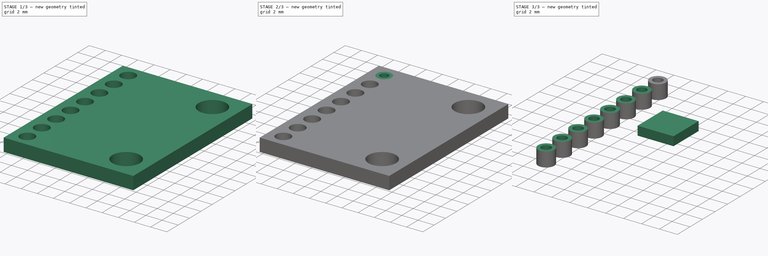
[diagram: build sequence overview — one tinted view per stage of 3, left to right]
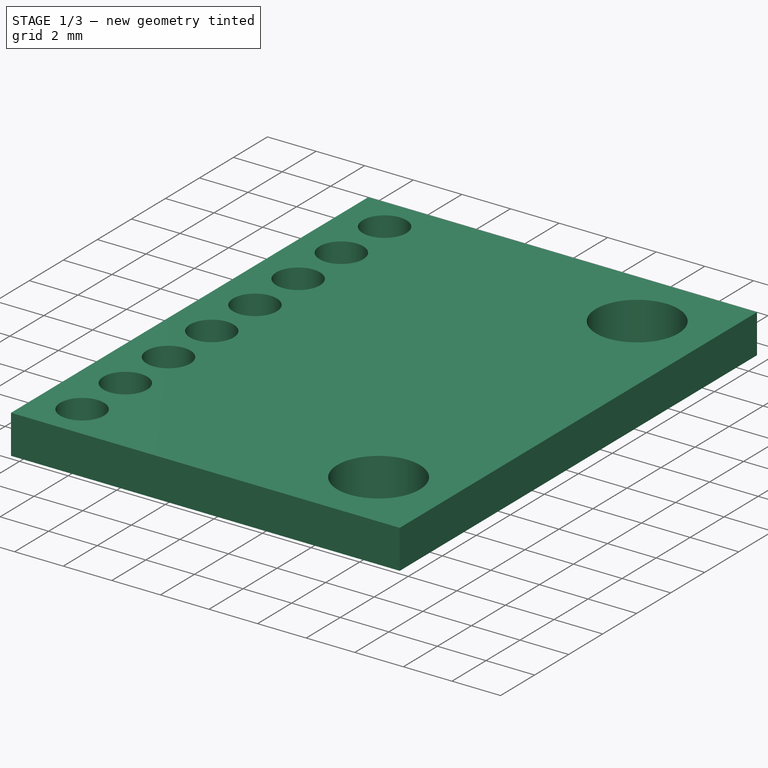
[diagram: stage 1 of 3 — iso view after this stage's code; geometry added in this stage tinted green]
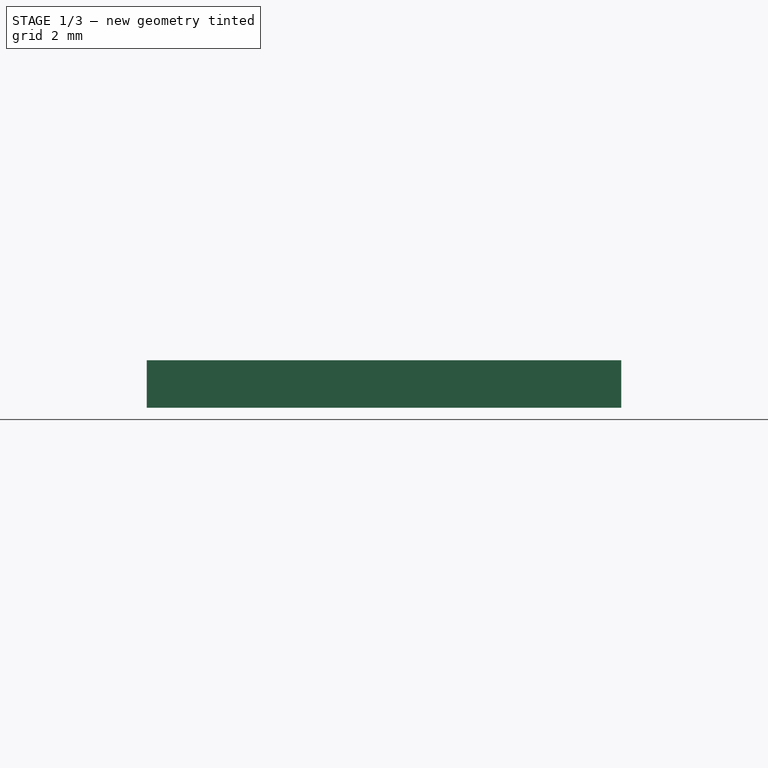
[diagram: stage 1 of 3 — front view after this stage's code; geometry added in this stage tinted green]
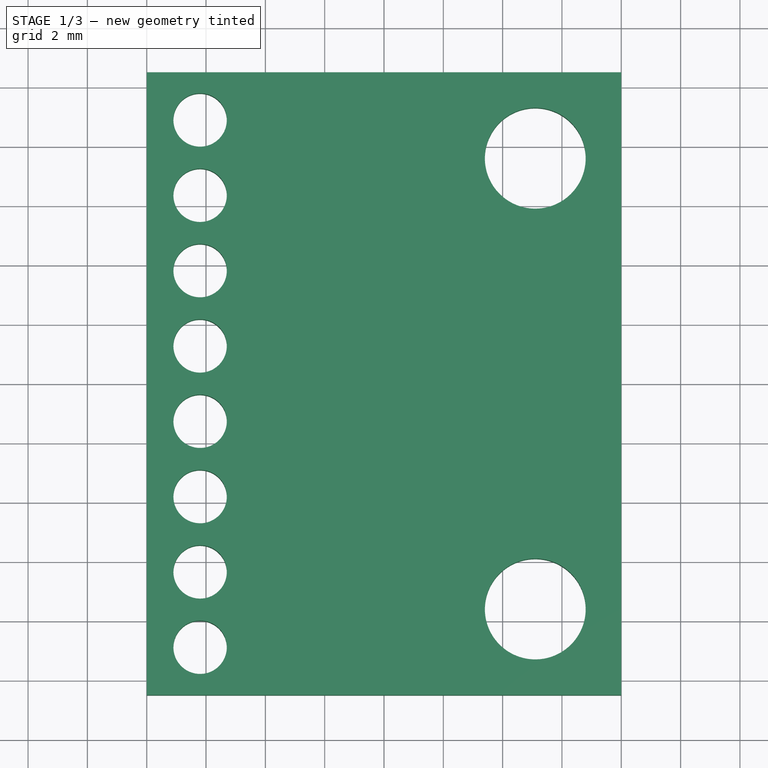
[diagram: stage 1 of 3 — top view after this stage's code; geometry added in this stage tinted green]
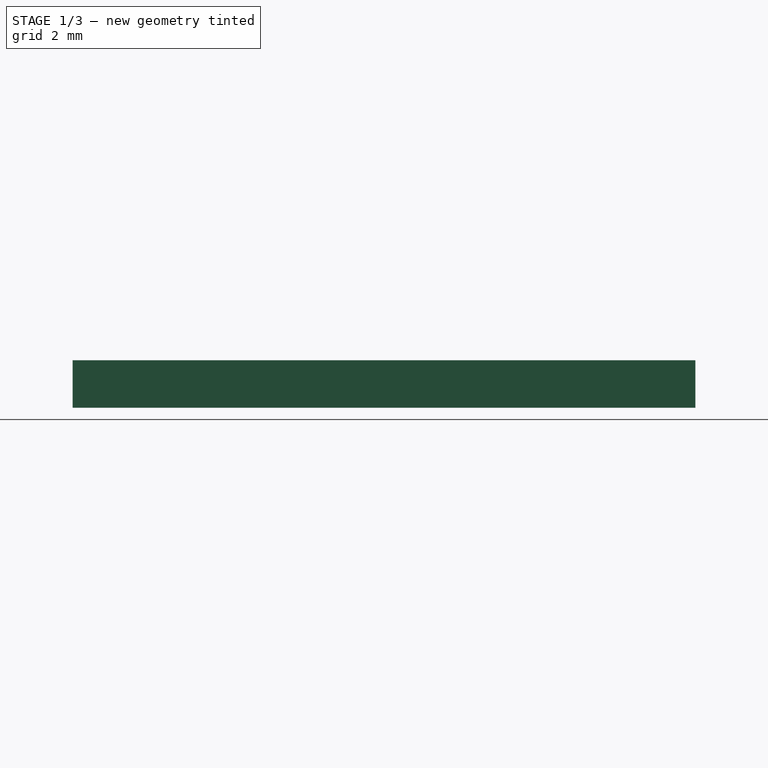
[diagram: stage 1 of 3 — right view after this stage's code; geometry added in this stage tinted green]
FCSTD DOCUMENT  (FreeCAD 0.20R27422 (Git))
Label: MPU-6050_Board
License: All rights reserved
LicenseURL: http://en.wikipedia.org/wiki/All_rights_reserved
objects: Sketcher::SketchObject×9, App::DocumentObjectGroup×3, PartDesign::Pad×2, PartDesign::Body×2, Part::FeaturePython×2, PartDesign::Pocket×1, PartDesign::ShapeBinder×1, PartDesign::Plane×1, App::Part×1, Part::Part2DObjectPython×1
note: 21 computed .brp shape members not serialized (recipe doc carries the construction recipe); baked Part::Feature solids carry a one-line shape summary decoded from their .brp

FEATURE [Sketcher::SketchObject] Sketch
  FullyConstrained = true
  MapMode = 5
  Support = -> [XY_Plane]
  sketch-geometry (4):
    g0: LineSegment StartX=-8 StartY=10.5 StartZ=0 EndX=8 EndY=10.5 EndZ=0
    g1: LineSegment StartX=8 StartY=10.5 StartZ=0 EndX=8 EndY=-10.5 EndZ=0
    g2: LineSegment StartX=8 StartY=-10.5 StartZ=0 EndX=-8 EndY=-10.5 EndZ=0
    g3: LineSegment StartX=-8 StartY=-10.5 StartZ=0 EndX=-8 EndY=10.5 EndZ=0
  constraints (11):
    c: Coincident(g0,g1)
    c: Coincident(g1,g2)
    c: Coincident(g2,g3)
    c: Coincident(g3,g0)
    c: Horizontal(g0)
    c: Horizontal(g2)
    c: Vertical(g1)
    c: Vertical(g3)
    c: DistanceY(g3,g3) = 21
    c: Symmetric(g0,g1,g-1)
    c: DistanceX(g0,g0) = 16
FEATURE [PartDesign::Pad] Pad
  Direction = (0,0,1)
  Length = 1.6
  Length2 = 10
  Profile = -> Sketch
  ReferenceAxis = -> Sketch [N_Axis]
  Type = 0
FEATURE [Sketcher::SketchObject] Sketch001
  ExternalGeometry = -> [Pad]
  FullyConstrained = true
  MapMode = 5
  Placement = pos=(0,0,1.6) rot=(0,0,1;0rad)
  Support = -> [Pad]
  sketch-geometry (19):
    g0: Circle CenterX=5.1 CenterY=7.6 CenterZ=0 NormalX=0 NormalY=0 NormalZ=1 AngleXU=0 Radius=1.7
    g1: Circle CenterX=5.1 CenterY=-7.6 CenterZ=0 NormalX=0 NormalY=0 NormalZ=1 AngleXU=0 Radius=1.7
    g2: LineSegment StartX=5.1 StartY=7.6 StartZ=0 EndX=5.1 EndY=10.5 EndZ=0
    g3: LineSegment StartX=5.1 StartY=7.6 StartZ=0 EndX=8 EndY=7.6 EndZ=0
    g4: GeomPoint X=6.8 Y=7.6 Z=0
    g5: LineSegment StartX=5.1 StartY=7.6 StartZ=0 EndX=-6.2 EndY=7.6 EndZ=0
    g6: LineSegment StartX=-6.2 StartY=10.5 StartZ=0 EndX=-6.2 EndY=-10.5 EndZ=0
    g7: GeomPoint X=-6.2 Y=-1.27 Z=0
    g8: GeomPoint X=-6.2 Y=-3.81 Z=0
    g9: GeomPoint X=-6.2 Y=-6.35 Z=0
    g10: GeomPoint X=-6.2 Y=-8.89 Z=0
    g11: Circle CenterX=-6.2 CenterY=-1.27 CenterZ=0 NormalX=0 NormalY=0 NormalZ=1 AngleXU=0 Radius=0.9
    g12: Circle CenterX=-6.2 CenterY=-3.81 CenterZ=0 NormalX=0 NormalY=0 NormalZ=1 AngleXU=0 Radius=0.9
    g13: Circle CenterX=-6.2 CenterY=-6.35 CenterZ=0 NormalX=0 NormalY=0 NormalZ=1 AngleXU=0 Radius=0.9
    g14: Circle CenterX=-6.2 CenterY=-8.89 CenterZ=0 NormalX=0 NormalY=0 NormalZ=1 AngleXU=0 Radius=0.9
    g15: Circle CenterX=-6.2 CenterY=1.27 CenterZ=0 NormalX=0 NormalY=0 NormalZ=1 AngleXU=0 Radius=0.9
    g16: Circle CenterX=-6.2 CenterY=3.81 CenterZ=0 NormalX=0 NormalY=0 NormalZ=1 AngleXU=0 Radius=0.9
    g17: Circle CenterX=-6.2 CenterY=6.35 CenterZ=0 NormalX=0 NormalY=0 NormalZ=1 AngleXU=0 Radius=0.9
    g18: Circle CenterX=-6.2 CenterY=8.89 CenterZ=0 NormalX=0 NormalY=0 NormalZ=1 AngleXU=0 Radius=0.9
  constraints (44):
    c: Equal(g1,g0)
    c: Diameter(g0) = 3.4
    c: Symmetric(g0,g1,g-1)
    c: Coincident(g2,g0)
    c: PointOnObject(g2,g-3)
    c: Vertical(g2)
    c: Coincident(g3,g0)
    c: PointOnObject(g3,g-5)
    c: Horizontal(g3)
    c: Equal(g3,g2)
    c: PointOnObject(g4,g3)
    c: PointOnObject(g4,g0)
    c: Distance(g4,g3) = 1.2
    c: Coincident(g5,g0)
    c: Horizontal(g5)
    c: DistanceX(g5,g5) = 11.3
    c: PointOnObject(g6,g-3)
    c: PointOnObject(g6,g-4)
    c: Vertical(g6)
    c: PointOnObject(g5,g6)
    c: PointOnObject(g7,g6)
    c: PointOnObject(g8,g6)
    c: PointOnObject(g9,g6)
    c: PointOnObject(g10,g6)
    c: DistanceY(g8,g7) = 2.54
    c: DistanceY(g9,g8) = 2.54
    c: DistanceY(g10,g9) = 2.54
    c: DistanceY(g7,g-1) = 1.27
    c: Coincident(g11,g7)
    c: Coincident(g12,g8)
    c: Coincident(g13,g9)
    c: Coincident(g14,g10)
    c: Symmetric(g14,g18,g-1)
    c: Symmetric(g13,g17,g-1)
    c: Symmetric(g12,g16,g-1)
    c: Symmetric(g11,g15,g-1)
    c: Diameter(g18) = 1.8
    c: Equal(g17,g18)
    c: Equal(g18,g16)
    c: Equal(g16,g15)
    c: Equal(g15,g11)
    c: Equal(g11,g12)
    c: Equal(g12,g13)
    c: Equal(g13,g14)
FEATURE [PartDesign::Pocket] Pocket
  BaseFeature = -> Pad
  Direction = (0,0,-1)
  Length = 5
  Length2 = 5
  Profile = -> Sketch001
  ReferenceAxis = -> Sketch001 [N_Axis]
  Type = 0
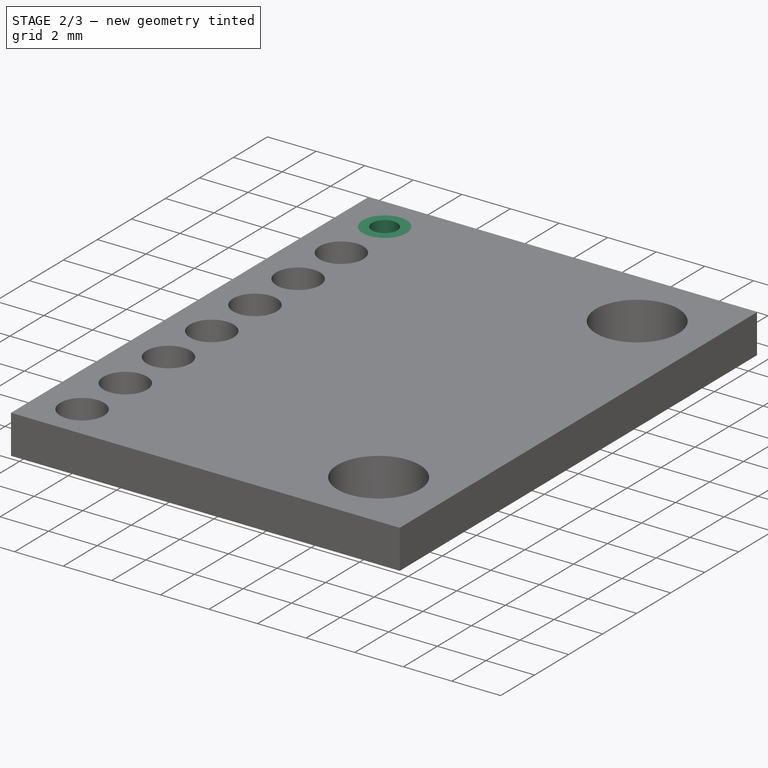
[diagram: stage 2 of 3 — iso view after this stage's code; geometry added in this stage tinted green]
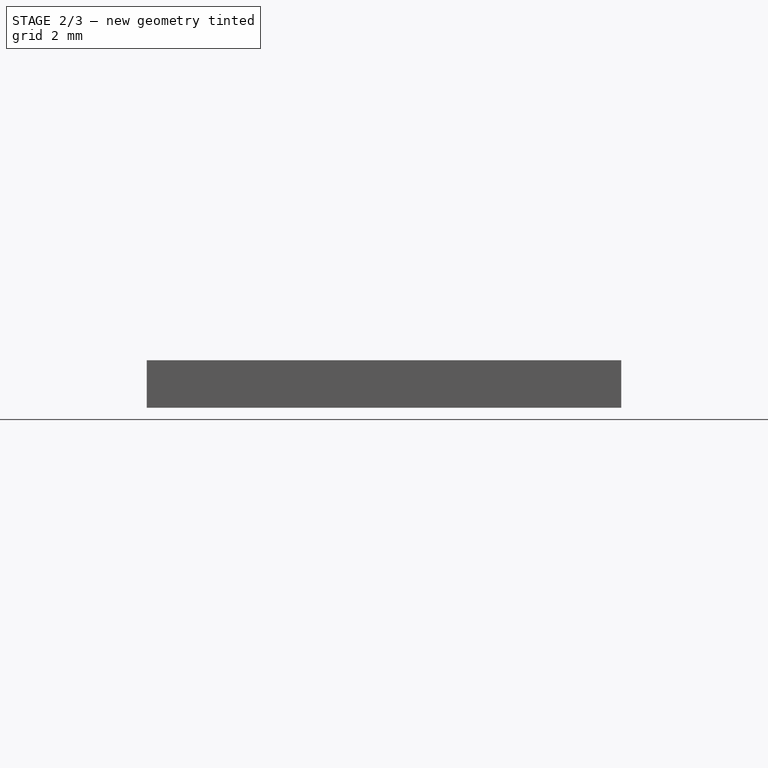
[diagram: stage 2 of 3 — front view after this stage's code; geometry added in this stage tinted green]
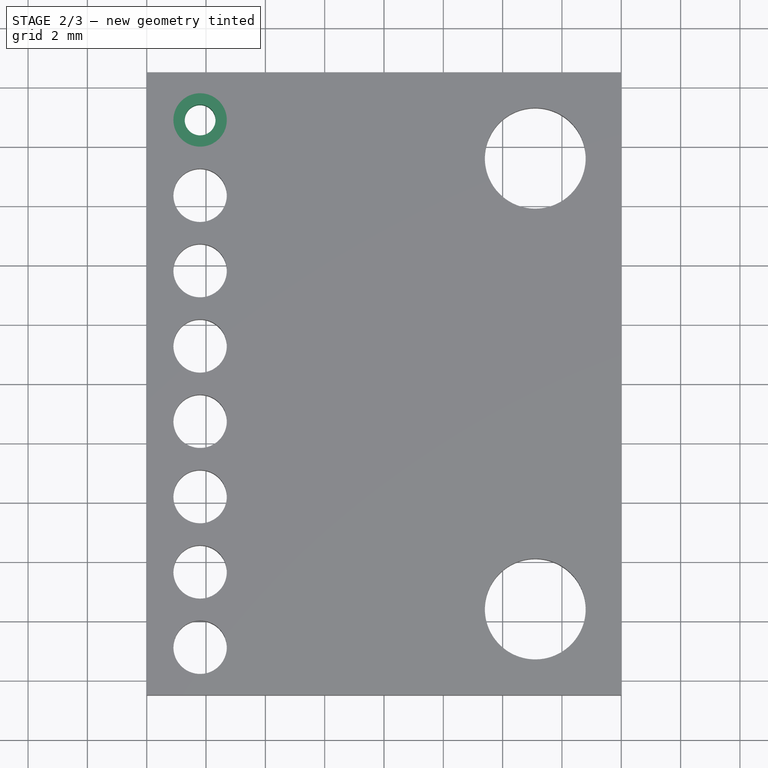
[diagram: stage 2 of 3 — top view after this stage's code; geometry added in this stage tinted green]
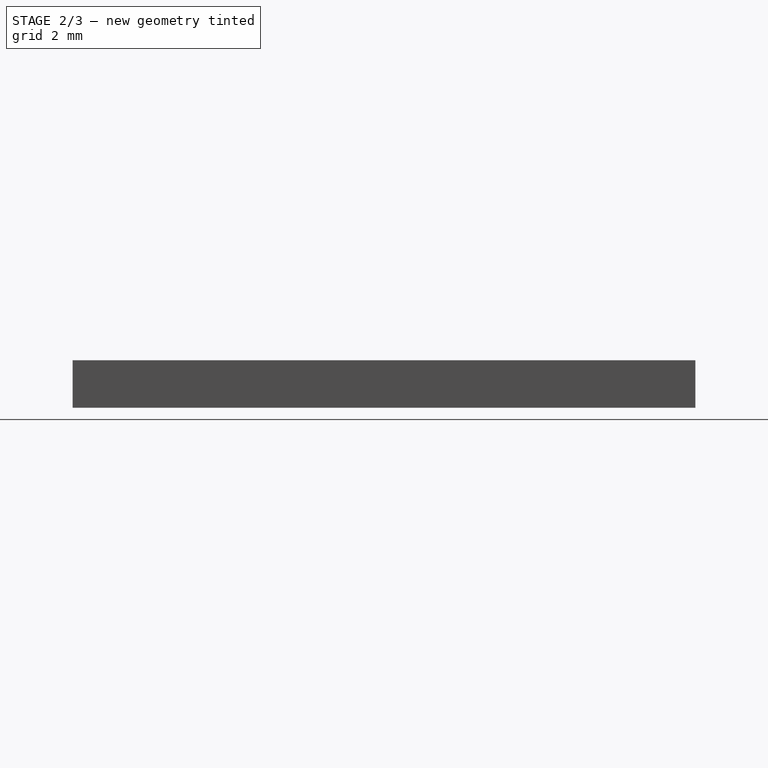
[diagram: stage 2 of 3 — right view after this stage's code; geometry added in this stage tinted green]
FEATURE [PartDesign::Body] Body001  label="chip"
  Group = -> [ShapeBinder,DatumPlane,Sketch002,Pad001]
  Origin = -> Origin001
  Tip = -> Pad001
FEATURE [Part::FeaturePython] Tube  # WARN: FeaturePython — macro-defined, semantics opaque (R4)
  AttacherType = Attacher::AttachEngine3D
  Height = 1.6
  InnerRadius = 0.52
  OuterRadius = 0.9
  Placement = pos=(-6.2,8.89,0) rot=(0,0,1;0rad)
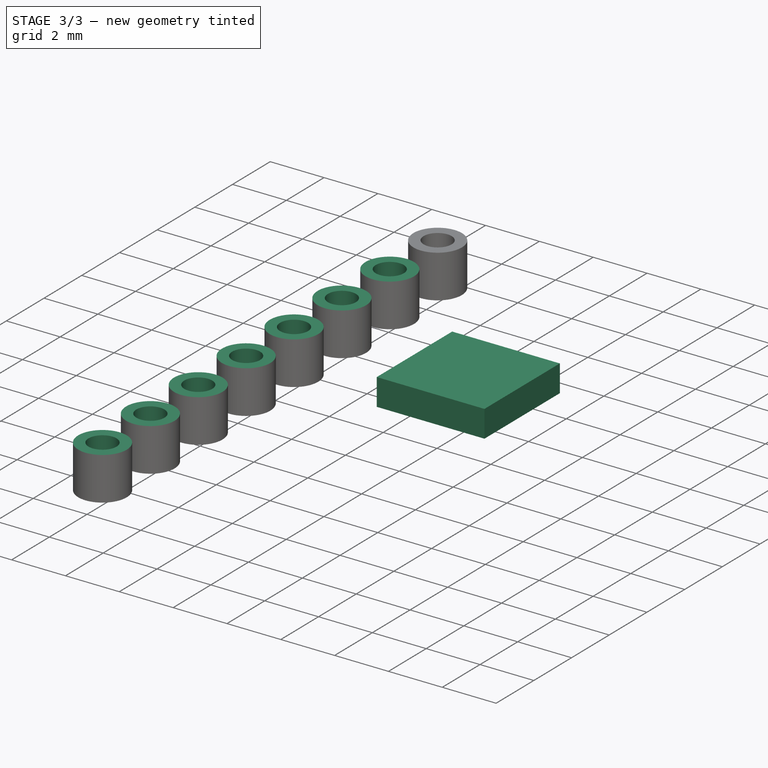
[diagram: stage 3 of 3 — iso view after this stage's code; geometry added in this stage tinted green]
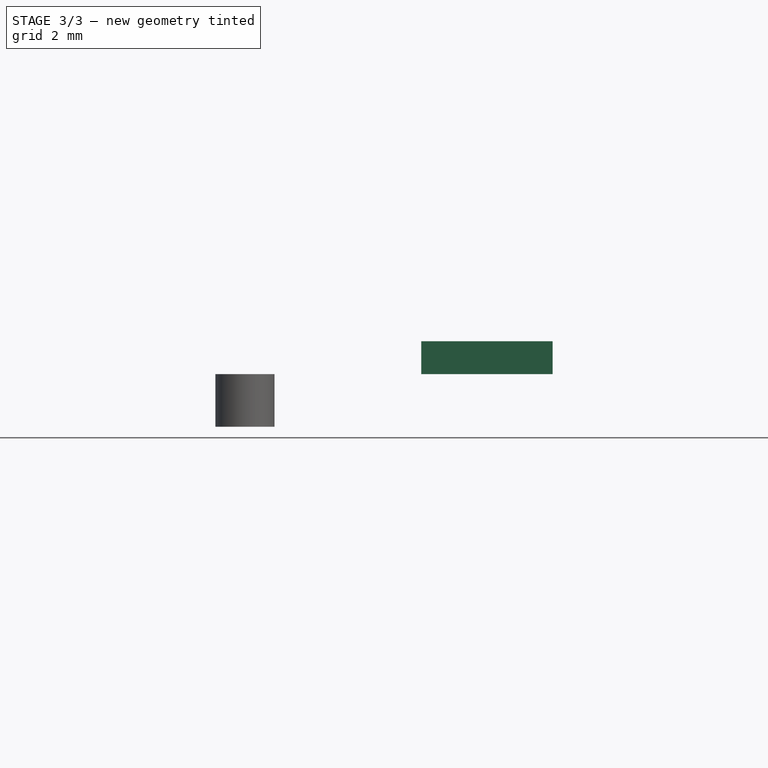
[diagram: stage 3 of 3 — front view after this stage's code; geometry added in this stage tinted green]
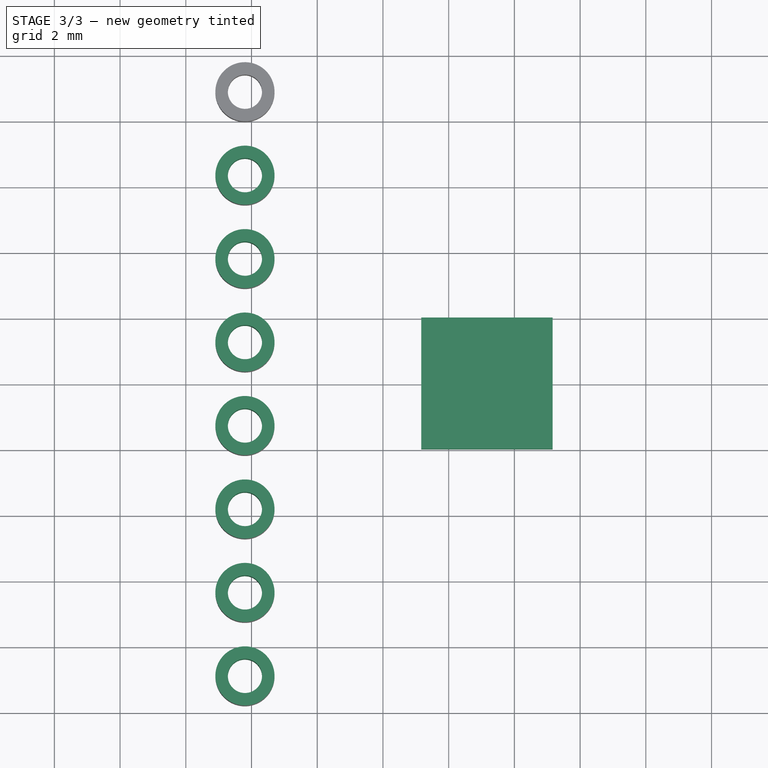
[diagram: stage 3 of 3 — top view after this stage's code; geometry added in this stage tinted green]
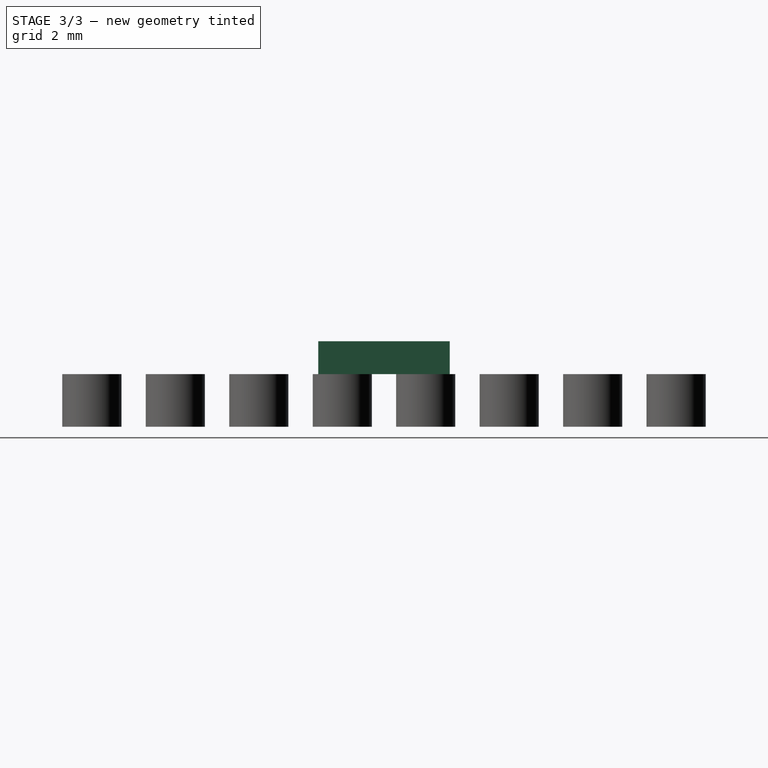
[diagram: stage 3 of 3 — right view after this stage's code; geometry added in this stage tinted green]
FEATURE [PartDesign::ShapeBinder] ShapeBinder
  Support = -> [Pocket]
  TraceSupport = false
FEATURE [PartDesign::Plane] DatumPlane
  Length = 60
  MapMode = 13
  Placement = pos=(2.66667,3.5,1.6) rot=(0,1,0;3.14159rad)
  ResizeMode = 0
  Support = -> [ShapeBinder]
  Width = 60
FEATURE [Sketcher::SketchObject] Sketch002
  ExternalGeometry = -> [ShapeBinder]
  FullyConstrained = false
  MapMode = 5
  Placement = pos=(2.66667,3.5,1.6) rot=(0,1,0;3.14159rad)
  Support = -> [DatumPlane]
  sketch-geometry (7):
    g0: LineSegment StartX=3.50296 StartY=-5.5 StartZ=0 EndX=-0.497035 EndY=-5.5 EndZ=0
    g1: LineSegment StartX=-0.497035 StartY=-5.5 StartZ=0 EndX=-0.497035 EndY=-1.5 EndZ=0
    g2: LineSegment StartX=-0.497035 StartY=-1.5 StartZ=0 EndX=3.50296 EndY=-1.5 EndZ=0
    g3: LineSegment StartX=3.50296 StartY=-1.5 StartZ=0 EndX=3.50296 EndY=-5.5 EndZ=0
    g4: LineSegment StartX=8.86667 StartY=-4.77 StartZ=0 EndX=8.86667 EndY=-3.5 EndZ=0
    g5: LineSegment StartX=8.86667 StartY=-3.5 StartZ=0 EndX=8.86667 EndY=-2.23 EndZ=0
    g6: LineSegment StartX=8.86667 StartY=-3.5 StartZ=0 EndX=-3.75702 EndY=-3.5 EndZ=0
  constraints (17):
    c: Coincident(g0,g1)
    c: Coincident(g1,g2)
    c: Coincident(g2,g3)
    c: Coincident(g3,g0)
    c: Horizontal(g0)
    c: Horizontal(g2)
    c: Vertical(g1)
    c: Vertical(g3)
    c: Coincident(g4,g-4)
    c: Coincident(g5,g-3)
    c: Coincident(g4,g5)
    c: Coincident(g6,g4)
    c: Equal(g4,g5)
    c: Parallel(g5,g4)
    c: Symmetric(g0,g2,g6)
    c: Equal(g3,g0)
    c: DistanceX(g0,g0) = 4
FEATURE [PartDesign::Pad] Pad001
  Direction = (0,0,-1)
  Length = 1
  Length2 = 10
  Placement = pos=(2.66667,3.5,1.6) rot=(0,1,0;3.14159rad)
  Profile = -> Sketch002
  ReferenceAxis = -> Sketch002 [N_Axis]
  Reversed = true
  Type = 0
FEATURE [Part::FeaturePython] Array  # Draft array (typed FeaturePython)
  AlwaysSyncPlacement = false
  Angle = 360
  ArrayType = 0
  Axis = (0,0,1)
  Base = -> Tube
  Center = (0,0,0)
  Count = 8
  ExpandArray = false
  Fuse = false
  IntervalAxis = (0,0,0)
  IntervalX = (100,0,0)
  IntervalY = (0,-2.54,0)
  IntervalZ = (0,0,100)
  NumberCircles = 3
  NumberPolar = 5
  NumberX = 1
  NumberY = 8
  NumberZ = 1
  PlacementList = 8 placements: arithmetic series from (-6.2,8.89,0) step (0,-2.54,0) to (-6.2,-8.89,0)
  RadialDistance = 50
  ScaleList = (8) [(1,1,1),(1,1,1),(1,1,1),(1,1,1),(1,1,1),(1,1,1),(1,1,1),(1,1,1)]
  Symmetry = 1
  TangentialDistance = 25
FEATURE [App::Part] Part
  Group = -> [Tube,Array]
  Origin = -> Origin002
FEATURE [PartDesign::Body] Body  label="PCB"
  Group = -> [Sketch,Pad,Sketch001,Pocket]
  Origin = -> Origin
  Tip = -> Pocket
FEATURE [App::DocumentObjectGroup] Group  label="3d_model"
  Group = -> [Body,Body001,Part]
FEATURE [Part::Part2DObjectPython] Shape2DView  # Draft 2D object (typed FeaturePython)
  AutoUpdate = true
  Base = -> Group
  Clip = false
  FuseArch = false
  HiddenLines = false
  InPlace = true
  OnlySolids = false
  Projection = (0,0,1)
  ProjectionMode = 0
  SegmentLength = 0.05
  Tessellation = false
  VisibleOnly = false
FEATURE [Sketcher::SketchObject] Sketch005  label="F_Silks_0.16"
  FullyConstrained = false
  sketch-geometry (4):
    g0: LineSegment StartX=-8 StartY=10.5 StartZ=0 EndX=8 EndY=10.5 EndZ=0
    g1: LineSegment StartX=-8 StartY=-10.5 StartZ=0 EndX=-8 EndY=10.5 EndZ=0
    g2: LineSegment StartX=8 StartY=10.5 StartZ=0 EndX=8 EndY=-10.5 EndZ=0
    g3: LineSegment StartX=8 StartY=-10.5 StartZ=0 EndX=-8 EndY=-10.5 EndZ=0
FEATURE [Sketcher::SketchObject] Sketch004  label="Pads_TH_SMD"
  FullyConstrained = false
  sketch-geometry (16):
    g0: Circle CenterX=-6.2 CenterY=8.89 CenterZ=0 NormalX=0 NormalY=0 NormalZ=1 AngleXU=0 Radius=0.9
    g1: Circle CenterX=-6.2 CenterY=8.89 CenterZ=0 NormalX=0 NormalY=0 NormalZ=1 AngleXU=0 Radius=0.52
    g2: Circle CenterX=-6.2 CenterY=6.35 CenterZ=0 NormalX=0 NormalY=0 NormalZ=1 AngleXU=0 Radius=0.9
    g3: Circle CenterX=-6.2 CenterY=6.35 CenterZ=0 NormalX=0 NormalY=0 NormalZ=1 AngleXU=0 Radius=0.52
    g4: Circle CenterX=-6.2 CenterY=3.81 CenterZ=0 NormalX=0 NormalY=0 NormalZ=1 AngleXU=0 Radius=0.9
    g5: Circle CenterX=-6.2 CenterY=3.81 CenterZ=0 NormalX=0 NormalY=0 NormalZ=1 AngleXU=0 Radius=0.52
    g6: Circle CenterX=-6.2 CenterY=1.27 CenterZ=0 NormalX=0 NormalY=0 NormalZ=1 AngleXU=0 Radius=0.9
    g7: Circle CenterX=-6.2 CenterY=1.27 CenterZ=0 NormalX=0 NormalY=0 NormalZ=1 AngleXU=0 Radius=0.52
    g8: Circle CenterX=-6.2 CenterY=-1.27 CenterZ=0 NormalX=0 NormalY=0 NormalZ=1 AngleXU=0 Radius=0.9
    g9: Circle CenterX=-6.2 CenterY=-1.27 CenterZ=0 NormalX=0 NormalY=0 NormalZ=1 AngleXU=0 Radius=0.52
    g10: Circle CenterX=-6.2 CenterY=-3.81 CenterZ=0 NormalX=0 NormalY=0 NormalZ=1 AngleXU=0 Radius=0.9
    g11: Circle CenterX=-6.2 CenterY=-3.81 CenterZ=0 NormalX=0 NormalY=0 NormalZ=1 AngleXU=0 Radius=0.52
    g12: Circle CenterX=-6.2 CenterY=-6.35 CenterZ=0 NormalX=0 NormalY=0 NormalZ=1 AngleXU=0 Radius=0.9
    g13: Circle CenterX=-6.2 CenterY=-6.35 CenterZ=0 NormalX=0 NormalY=0 NormalZ=1 AngleXU=0 Radius=0.52
    g14: Circle CenterX=-6.2 CenterY=-8.89 CenterZ=0 NormalX=0 NormalY=0 NormalZ=1 AngleXU=0 Radius=0.9
    g15: Circle CenterX=-6.2 CenterY=-8.89 CenterZ=0 NormalX=0 NormalY=0 NormalZ=1 AngleXU=0 Radius=0.52
FEATURE [Sketcher::SketchObject] Sketch007  label="Sketch_converted003"
  FullyConstrained = false
  sketch-geometry (32):
    g0: LineSegment StartX=-8 StartY=10.5 StartZ=0 EndX=8 EndY=10.5 EndZ=0
    g1: LineSegment StartX=-8 StartY=-10.5 StartZ=0 EndX=-8 EndY=10.5 EndZ=0
    g2: LineSegment StartX=8 StartY=10.5 StartZ=0 EndX=8 EndY=-10.5 EndZ=0
    g3: LineSegment StartX=8 StartY=-10.5 StartZ=0 EndX=-8 EndY=-10.5 EndZ=0
    g4: Circle CenterX=5.1 CenterY=-7.6 CenterZ=0 NormalX=0 NormalY=0 NormalZ=1 AngleXU=0 Radius=1.7
    g5: Circle CenterX=-6.2 CenterY=-8.89 CenterZ=0 NormalX=0 NormalY=0 NormalZ=1 AngleXU=0 Radius=0.9
    g6: Circle CenterX=-6.2 CenterY=-6.35 CenterZ=0 NormalX=0 NormalY=0 NormalZ=1 AngleXU=0 Radius=0.9
    g7: Circle CenterX=-6.2 CenterY=-3.81 CenterZ=0 NormalX=0 NormalY=0 NormalZ=1 AngleXU=0 Radius=0.9
    g8: Circle CenterX=-6.2 CenterY=-1.27 CenterZ=0 NormalX=0 NormalY=0 NormalZ=1 AngleXU=0 Radius=0.9
    g9: Circle CenterX=5.1 CenterY=7.6 CenterZ=0 NormalX=0 NormalY=0 NormalZ=1 AngleXU=0 Radius=1.7
    g10: Circle CenterX=-6.2 CenterY=1.27 CenterZ=0 NormalX=0 NormalY=0 NormalZ=1 AngleXU=0 Radius=0.9
    g11: Circle CenterX=-6.2 CenterY=3.81 CenterZ=0 NormalX=0 NormalY=0 NormalZ=1 AngleXU=0 Radius=0.9
    g12: Circle CenterX=-6.2 CenterY=6.35 CenterZ=0 NormalX=0 NormalY=0 NormalZ=1 AngleXU=0 Radius=0.9
    g13: Circle CenterX=-6.2 CenterY=8.89 CenterZ=0 NormalX=0 NormalY=0 NormalZ=1 AngleXU=0 Radius=0.9
    g14: Circle CenterX=-6.2 CenterY=6.35 CenterZ=0 NormalX=0 NormalY=0 NormalZ=1 AngleXU=0 Radius=0.52
    g15: Circle CenterX=-6.2 CenterY=8.89 CenterZ=0 NormalX=0 NormalY=0 NormalZ=1 AngleXU=0 Radius=0.52
    g16: Circle CenterX=-6.2 CenterY=8.89 CenterZ=0 NormalX=0 NormalY=0 NormalZ=1 AngleXU=0 Radius=0.9
    g17: Circle CenterX=-6.2 CenterY=8.89 CenterZ=0 NormalX=0 NormalY=0 NormalZ=1 AngleXU=0 Radius=0.52
    g18: Circle CenterX=-6.2 CenterY=6.35 CenterZ=0 NormalX=0 NormalY=0 NormalZ=1 AngleXU=0 Radius=0.9
    g19: Circle CenterX=-6.2 CenterY=6.35 CenterZ=0 NormalX=0 NormalY=0 NormalZ=1 AngleXU=0 Radius=0.52
    g20: Circle CenterX=-6.2 CenterY=3.81 CenterZ=0 NormalX=0 NormalY=0 NormalZ=1 AngleXU=0 Radius=0.9
    g21: Circle CenterX=-6.2 CenterY=3.81 CenterZ=0 NormalX=0 NormalY=0 NormalZ=1 AngleXU=0 Radius=0.52
    g22: Circle CenterX=-6.2 CenterY=1.27 CenterZ=0 NormalX=0 NormalY=0 NormalZ=1 AngleXU=0 Radius=0.9
    g23: Circle CenterX=-6.2 CenterY=1.27 CenterZ=0 NormalX=0 NormalY=0 NormalZ=1 AngleXU=0 Radius=0.52
    g24: Circle CenterX=-6.2 CenterY=-1.27 CenterZ=0 NormalX=0 NormalY=0 NormalZ=1 AngleXU=0 Radius=0.9
    g25: Circle CenterX=-6.2 CenterY=-1.27 CenterZ=0 NormalX=0 NormalY=0 NormalZ=1 AngleXU=0 Radius=0.52
    g26: Circle CenterX=-6.2 CenterY=-3.81 CenterZ=0 NormalX=0 NormalY=0 NormalZ=1 AngleXU=0 Radius=0.9
    g27: Circle CenterX=-6.2 CenterY=-3.81 CenterZ=0 NormalX=0 NormalY=0 NormalZ=1 AngleXU=0 Radius=0.52
    g28: Circle CenterX=-6.2 CenterY=-6.35 CenterZ=0 NormalX=0 NormalY=0 NormalZ=1 AngleXU=0 Radius=0.9
    g29: Circle CenterX=-6.2 CenterY=-6.35 CenterZ=0 NormalX=0 NormalY=0 NormalZ=1 AngleXU=0 Radius=0.52
    g30: Circle CenterX=-6.2 CenterY=-8.89 CenterZ=0 NormalX=0 NormalY=0 NormalZ=1 AngleXU=0 Radius=0.9
    g31: Circle CenterX=-6.2 CenterY=-8.89 CenterZ=0 NormalX=0 NormalY=0 NormalZ=1 AngleXU=0 Radius=0.52
FEATURE [Sketcher::SketchObject] Sketch006  label="Pads_NPTH"
  FullyConstrained = false
  sketch-geometry (2):
    g0: Circle CenterX=5.1 CenterY=-7.6 CenterZ=0 NormalX=0 NormalY=0 NormalZ=1 AngleXU=0 Radius=1.7
    g1: Circle CenterX=5.1 CenterY=7.6 CenterZ=0 NormalX=0 NormalY=0 NormalZ=1 AngleXU=0 Radius=1.7
FEATURE [App::DocumentObjectGroup] Group001  label="footprint_with_screw_holes"
  Group = -> [Sketch004,Sketch005,Sketch006]
FEATURE [Sketcher::SketchObject] Sketch008  label="F_Silks_0.017"
  FullyConstrained = false
  sketch-geometry (4):
    g0: LineSegment StartX=-8 StartY=10.5 StartZ=0 EndX=8 EndY=10.5 EndZ=0
    g1: LineSegment StartX=-8 StartY=-10.5 StartZ=0 EndX=-8 EndY=10.5 EndZ=0
    g2: LineSegment StartX=8 StartY=10.5 StartZ=0 EndX=8 EndY=-10.5 EndZ=0
    g3: LineSegment StartX=8 StartY=-10.5 StartZ=0 EndX=-8 EndY=-10.5 EndZ=0
FEATURE [Sketcher::SketchObject] Sketch010  label="Pads_TH_SMD001"
  FullyConstrained = false
  sketch-geometry (16):
    g0: Circle CenterX=-6.2 CenterY=8.89 CenterZ=0 NormalX=0 NormalY=0 NormalZ=1 AngleXU=0 Radius=0.9
    g1: Circle CenterX=-6.2 CenterY=8.89 CenterZ=0 NormalX=0 NormalY=0 NormalZ=1 AngleXU=0 Radius=0.52
    g2: Circle CenterX=-6.2 CenterY=6.35 CenterZ=0 NormalX=0 NormalY=0 NormalZ=1 AngleXU=0 Radius=0.9
    g3: Circle CenterX=-6.2 CenterY=6.35 CenterZ=0 NormalX=0 NormalY=0 NormalZ=1 AngleXU=0 Radius=0.52
    g4: Circle CenterX=-6.2 CenterY=3.81 CenterZ=0 NormalX=0 NormalY=0 NormalZ=1 AngleXU=0 Radius=0.9
    g5: Circle CenterX=-6.2 CenterY=3.81 CenterZ=0 NormalX=0 NormalY=0 NormalZ=1 AngleXU=0 Radius=0.52
    g6: Circle CenterX=-6.2 CenterY=1.27 CenterZ=0 NormalX=0 NormalY=0 NormalZ=1 AngleXU=0 Radius=0.9
    g7: Circle CenterX=-6.2 CenterY=1.27 CenterZ=0 NormalX=0 NormalY=0 NormalZ=1 AngleXU=0 Radius=0.52
    g8: Circle CenterX=-6.2 CenterY=-1.27 CenterZ=0 NormalX=0 NormalY=0 NormalZ=1 AngleXU=0 Radius=0.9
    g9: Circle CenterX=-6.2 CenterY=-1.27 CenterZ=0 NormalX=0 NormalY=0 NormalZ=1 AngleXU=0 Radius=0.52
    g10: Circle CenterX=-6.2 CenterY=-3.81 CenterZ=0 NormalX=0 NormalY=0 NormalZ=1 AngleXU=0 Radius=0.9
    g11: Circle CenterX=-6.2 CenterY=-3.81 CenterZ=0 NormalX=0 NormalY=0 NormalZ=1 AngleXU=0 Radius=0.52
    g12: Circle CenterX=-6.2 CenterY=-6.35 CenterZ=0 NormalX=0 NormalY=0 NormalZ=1 AngleXU=0 Radius=0.9
    g13: Circle CenterX=-6.2 CenterY=-6.35 CenterZ=0 NormalX=0 NormalY=0 NormalZ=1 AngleXU=0 Radius=0.52
    g14: Circle CenterX=-6.2 CenterY=-8.89 CenterZ=0 NormalX=0 NormalY=0 NormalZ=1 AngleXU=0 Radius=0.9
    g15: Circle CenterX=-6.2 CenterY=-8.89 CenterZ=0 NormalX=0 NormalY=0 NormalZ=1 AngleXU=0 Radius=0.52
FEATURE [App::DocumentObjectGroup] Group002  label="footprint_no_screw_holes"
  Group = -> [Sketch010,Sketch008]
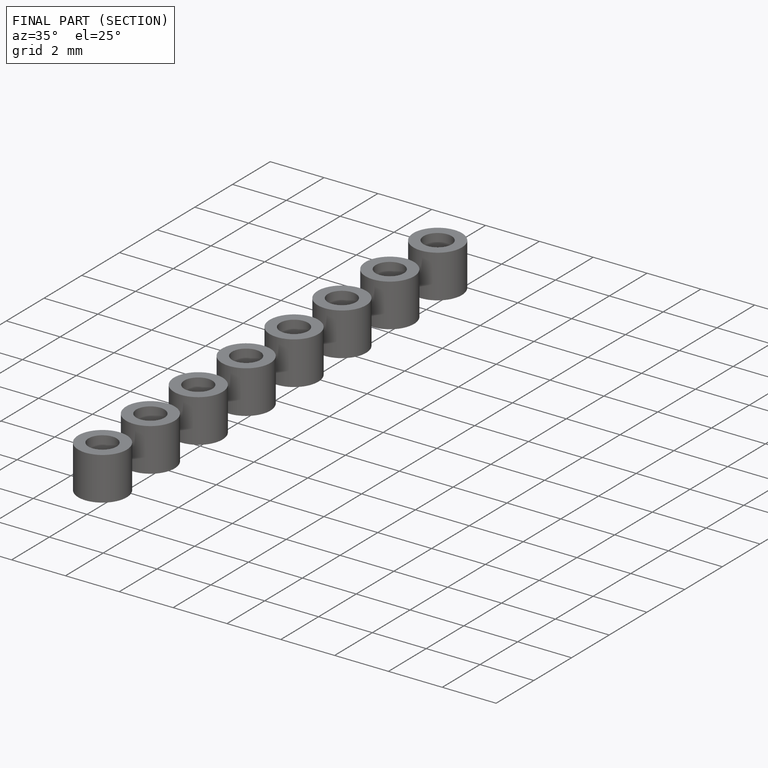
[diagram: finished part — half-section view (interior)]
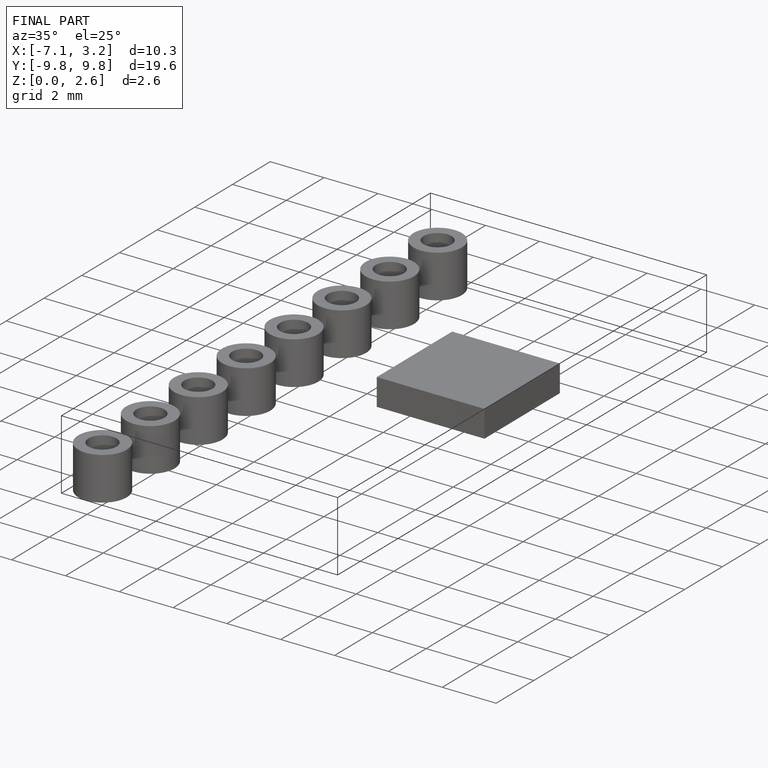
[diagram: finished part — iso view with bounding-box wireframe]
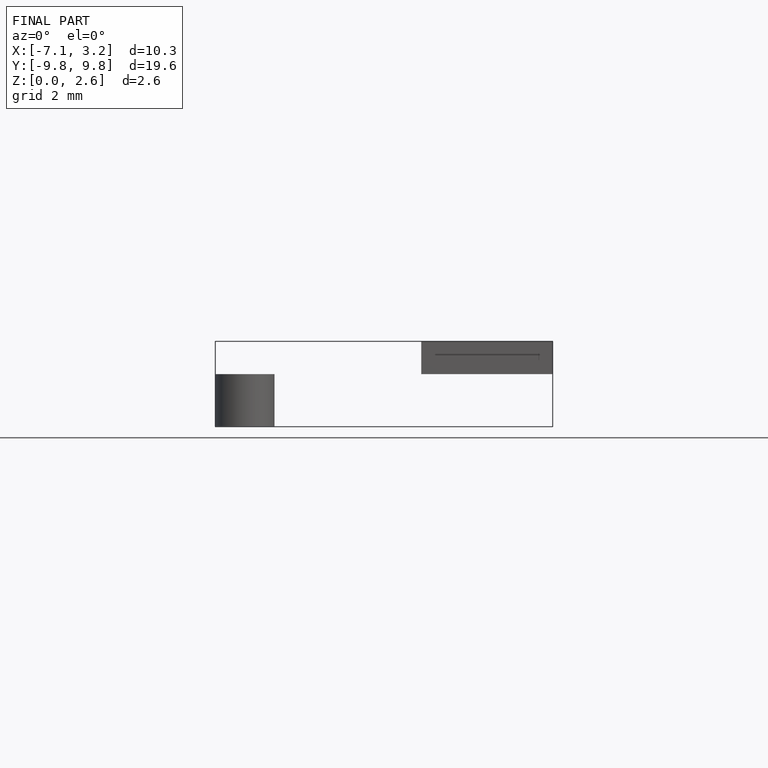
[diagram: finished part — front view with bounding-box wireframe]
